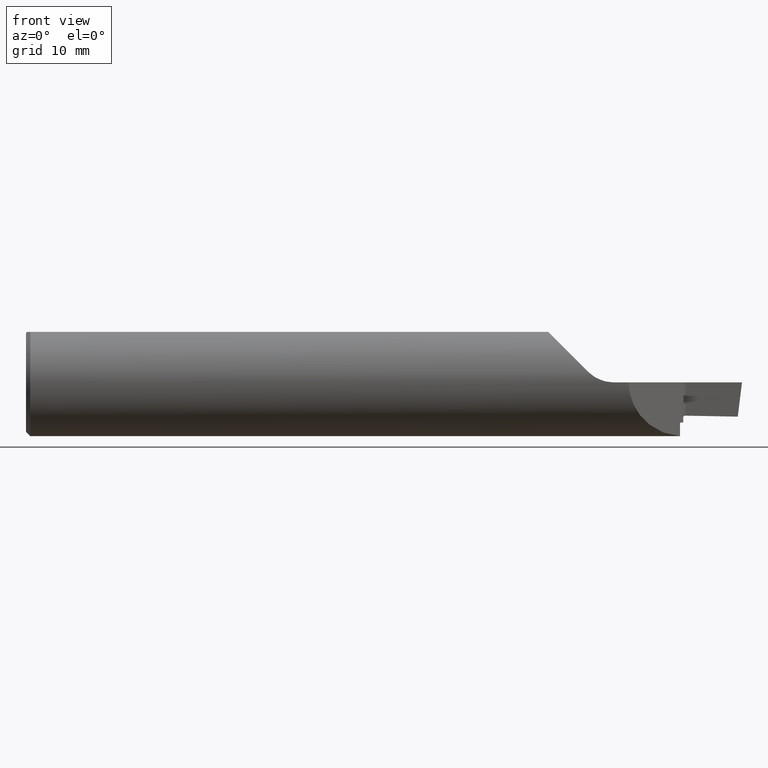
[diagram: clean part render]
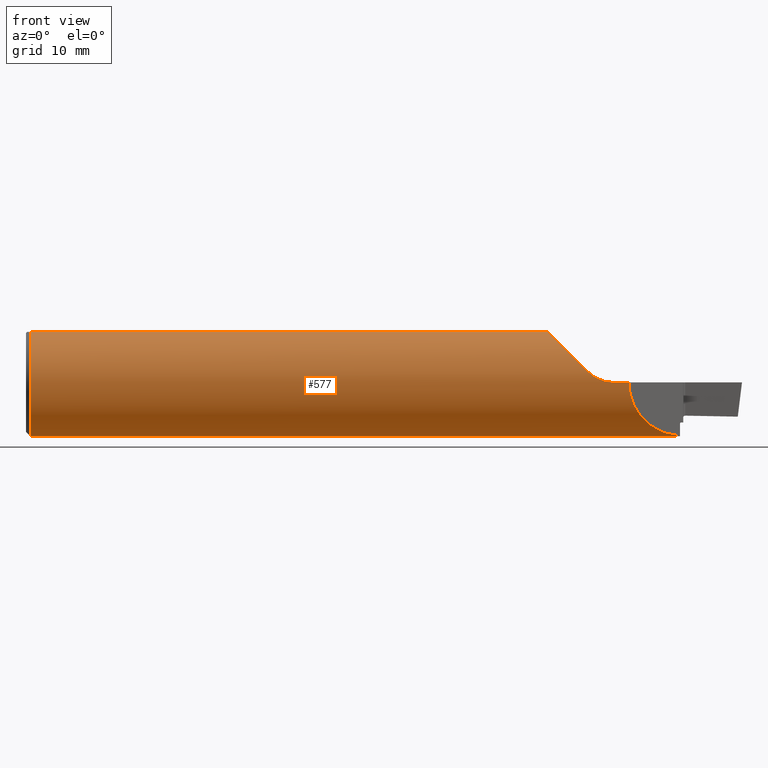
[diagram: same view with one face highlighted and labeled with its STEP entity id]
A machine part, front view. The second image highlights one B-rep face of the part: STEP entity #577.
In plain terms, the highlighted cylindrical surface (partial cylindrical patch) has radius 4.7587 mm, axis along (-1, -0, -0).
Its self-contained STEP definition (entity closure, byte-faithful):
#17 = CARTESIAN_POINT ( 'NONE',  ( 1.338951377213943861, -0.002870465228317849431, -0.1873283842962036871 ) ) ;
#28 = CARTESIAN_POINT ( 'NONE',  ( 1.337195659723047436, 0.007509920994524191089, -0.1872250261289547246 ) ) ;
#32 = ORIENTED_EDGE ( 'NONE', *, *, #613, .F. ) ;
#35 = CARTESIAN_POINT ( 'NONE',  ( 1.334999999999999742, 0.05625817887700514802, -0.1791322750681638709 ) ) ;
#37 = ORIENTED_EDGE ( 'NONE', *, *, #412, .T. ) ;
#54 = DIRECTION ( 'NONE',  ( -1.000000000000000000, -0.000000000000000000, -0.000000000000000000 ) ) ;
#56 = ORIENTED_EDGE ( 'NONE', *, *, #761, .T. ) ;
#67 = FACE_OUTER_BOUND ( 'NONE', #101, .T. ) ;
#70 = DIRECTION ( 'NONE',  ( 0.000000000000000000, 0.000000000000000000, -1.000000000000000000 ) ) ;
#77 = CARTESIAN_POINT ( 'NONE',  ( 1.846378452100291501, -0.1266201564974553662, 0.1536215478997087214 ) ) ;
#81 = CARTESIAN_POINT ( 'NONE',  ( 2.283393038587651080, -0.008956961412348769108, -0.1871357671378127974 ) ) ;
#83 = CARTESIAN_POINT ( 'NONE',  ( 1.339074979391454923, -0.003245713992497605265, -0.1873222229057585064 ) ) ;
#84 = EDGE_CURVE ( 'NONE', #249, #505, #118, .T. ) ;
#88 = VERTEX_POINT ( 'NONE', #536 ) ;
#91 = CARTESIAN_POINT ( 'NONE',  ( 0.000000000000000000, -0.1873499999999999888, 0.000000000000000000 ) ) ;
#99 = CARTESIAN_POINT ( 'NONE',  ( 2.035390929681094807, -0.1873549854116181856, 0.0008110107679984991354 ) ) ;
#101 = EDGE_LOOP ( 'NONE', ( #171, #636, #56, #219, #612, #464, #37, #392, #279, #110, #146, #32, #518 ) ) ;
#103 = CARTESIAN_POINT ( 'NONE',  ( 0.000000000000000000, -0.06325108694718213631, 0.1763499999999999790 ) ) ;
#110 = ORIENTED_EDGE ( 'NONE', *, *, #401, .T. ) ;
#111 = EDGE_CURVE ( 'NONE', #325, #461, #605, .T. ) ;
#118 = B_SPLINE_CURVE_WITH_KNOTS ( 'NONE', 3,
 ( #532, #140, #686, #208 ),
 .UNSPECIFIED., .F., .F.,
 ( 4, 4 ),
 ( 0.002381199190277828726, 0.002506274907967739364 ),
 .UNSPECIFIED. ) ;
#119 = CARTESIAN_POINT ( 'NONE',  ( 2.104999999999999538, -0.1873499999999999888, -6.829619984160658046E-17 ) ) ;
#121 = VERTEX_POINT ( 'NONE', #433 ) ;
#123 = DIRECTION ( 'NONE',  ( 0.000000000000000000, 0.000000000000000000, 1.000000000000000000 ) ) ;
#140 = CARTESIAN_POINT ( 'NONE',  ( 1.335000000000000187, 0.06629317938995302195, 0.1752365688409875943 ) ) ;
#146 = ORIENTED_EDGE ( 'NONE', *, *, #84, .F. ) ;
#155 = EDGE_CURVE ( 'NONE', #664, #325, #504, .T. ) ;
#158 = CARTESIAN_POINT ( 'NONE',  ( 1.339399018889529280, -0.003959314961772966192, -0.1873084986825458431 ) ) ;
#161 = CARTESIAN_POINT ( 'NONE',  ( 1.812499999999999778, -0.004437576883792758962, -0.1872974383471392446 ) ) ;
#167 = CARTESIAN_POINT ( 'NONE',  ( 1.336913895729895607, 0.01061167438636866772, -0.1870750754728970622 ) ) ;
#169 = DIRECTION ( 'NONE',  ( 1.000000000000000000, 0.000000000000000000, 0.000000000000000000 ) ) ;
#171 = ORIENTED_EDGE ( 'NONE', *, *, #155, .F. ) ;
#173 = LINE ( 'NONE', #103, #483 ) ;
#175 = EDGE_CURVE ( 'NONE', #732, #594, #540, .T. ) ;
#179 = CARTESIAN_POINT ( 'NONE',  ( 1.335009689054889037, 0.06325108694718309388, 0.1763499999999996737 ) ) ;
#191 = EDGE_CURVE ( 'NONE', #510, #732, #448, .T. ) ;
#202 = CARTESIAN_POINT ( 'NONE',  ( 1.963388347648318932, -0.1837378823544007778, 0.03661165235168151871 ) ) ;
#208 = CARTESIAN_POINT ( 'NONE',  ( 1.335009689054889037, 0.06325108694718309388, 0.1763499999999996737 ) ) ;
#219 = ORIENTED_EDGE ( 'NONE', *, *, #191, .T. ) ;
#228 = CARTESIAN_POINT ( 'NONE',  ( 1.339598998625805004, -0.004437576883793187439, -0.1872974383471391890 ) ) ;
#230 = CARTESIAN_POINT ( 'NONE',  ( 2.104999999999999538, -0.1873499999999999888, -6.829619984160658046E-17 ) ) ;
#231 = CARTESIAN_POINT ( 'NONE',  ( 1.335166595942603118, 0.04439214968827082108, -0.1824345190479061685 ) ) ;
#245 = CARTESIAN_POINT ( 'NONE',  ( 1.336187288558007502, 0.01991515597133086679, -0.1863922880607652710 ) ) ;
#249 = VERTEX_POINT ( 'NONE', #324 ) ;
#253 =( BOUNDED_CURVE ( )  B_SPLINE_CURVE ( 3, ( #474, #267, #798, #668 ),
 .UNSPECIFIED., .F., .T. ) 
 B_SPLINE_CURVE_WITH_KNOTS ( ( 4, 4 ),
 ( 1.594484567641964334, 1.618623265893552432 ),
 .UNSPECIFIED. ) 
 CURVE ( )  GEOMETRIC_REPRESENTATION_ITEM ( )  RATIONAL_B_SPLINE_CURVE ( ( 1.000000000000000000, 0.9999514441933211595, 0.9999514441933211595, 1.000000000000000000 ) ) 
 REPRESENTATION_ITEM ( '' )  );
#259 = CARTESIAN_POINT ( 'NONE',  ( 1.823649999999999771, -0.06325108694718213631, 0.1763499999999999790 ) ) ;
#261 = CARTESIAN_POINT ( 'NONE',  ( 1.335000000000000187, 0.000000000000000000, 0.000000000000000000 ) ) ;
#262 = VECTOR ( 'NONE', #442, 39.37007874015748143 ) ;
#264 = CIRCLE ( 'NONE', #635, 0.1873499999999999888 ) ;
#267 = CARTESIAN_POINT ( 'NONE',  ( 2.283340458535739081, -0.005944652255764125079, -0.1872617317037810758 ) ) ;
#269 = CARTESIAN_POINT ( 'NONE',  ( 1.340000000000000080, -0.004437576883793904747, -0.1872974383471392446 ) ) ;
#279 = ORIENTED_EDGE ( 'NONE', *, *, #561, .T. ) ;
#282 = CARTESIAN_POINT ( 'NONE',  ( 1.340000000000000080, -0.004437576883793904747, -0.1872974383471392446 ) ) ;
#285 = CARTESIAN_POINT ( 'NONE',  ( 1.338620484590426152, -0.001745530422709880031, -0.1873433696669191129 ) ) ;
#290 = CIRCLE ( 'NONE', #403, 0.1873499999999999888 ) ;
#295 = DIRECTION ( 'NONE',  ( -1.000000000000000000, -0.000000000000000000, -0.000000000000000000 ) ) ;
#302 = CARTESIAN_POINT ( 'NONE',  ( 1.338007575457989207, 0.001316809534356252120, -0.1873516452513924180 ) ) ;
#324 = CARTESIAN_POINT ( 'NONE',  ( 1.335000000000000187, 0.06780158507429057124, 0.1746509878626906764 ) ) ;
#325 = VERTEX_POINT ( 'NONE', #269 ) ;
#327 = EDGE_CURVE ( 'NONE', #594, #88, #757, .T. ) ;
#341 = CARTESIAN_POINT ( 'NONE',  ( 2.104999999999999538, -0.1873500000000000165, -0.1056296794908331560 ) ) ;
#347 = AXIS2_PLACEMENT_3D ( 'NONE', #459, #54, #123 ) ;
#353 = CARTESIAN_POINT ( 'NONE',  ( 0.01499999999999943046, -0.06325108694718213631, 0.1763499999999999790 ) ) ;
#364 = CARTESIAN_POINT ( 'NONE',  ( 2.051776695296636976, -0.1873499999999999888, 0.000000000000000000 ) ) ;
#368 = CARTESIAN_POINT ( 'NONE',  ( 1.996326790910569082, -0.1869473204897925123, 0.01267266404239195815 ) ) ;
#372 = CARTESIAN_POINT ( 'NONE',  ( 2.011462618758882659, -0.1872671557635287864, 0.006396047567269131165 ) ) ;
#377 = CARTESIAN_POINT ( 'NONE',  ( 2.019406815221594709, -0.1873142647345006628, 0.003989301195303232572 ) ) ;
#390 = CARTESIAN_POINT ( 'NONE',  ( 2.283314152437271982, -0.004437576883904383214, -0.1872974383471404936 ) ) ;
#392 = ORIENTED_EDGE ( 'NONE', *, *, #475, .T. ) ;
#401 = EDGE_CURVE ( 'NONE', #791, #505, #787, .T. ) ;
#403 = AXIS2_PLACEMENT_3D ( 'NONE', #435, #710, #772 ) ;
#412 = EDGE_CURVE ( 'NONE', #88, #845, #173, .T. ) ;
#433 = CARTESIAN_POINT ( 'NONE',  ( 0.01499999999999943046, 0.000000000000000000, -0.1873499999999998777 ) ) ;
#435 = CARTESIAN_POINT ( 'NONE',  ( 0.01499999999999943046, 0.000000000000000000, 0.000000000000000000 ) ) ;
#437 = CARTESIAN_POINT ( 'NONE',  ( 1.335000000000000187, 0.06780158507429057124, -0.1746509878626906764 ) ) ;
#442 = DIRECTION ( 'NONE',  ( -1.000000000000000000, -0.000000000000000000, -0.000000000000000000 ) ) ;
#444 = VECTOR ( 'NONE', #169, 39.37007874015748143 ) ;
#448 = LINE ( 'NONE', #91, #724 ) ;
#459 = CARTESIAN_POINT ( 'NONE',  ( 0.000000000000000000, 0.000000000000000000, 0.000000000000000000 ) ) ;
#461 = VERTEX_POINT ( 'NONE', #648 ) ;
#464 = ORIENTED_EDGE ( 'NONE', *, *, #327, .T. ) ;
#474 = CARTESIAN_POINT ( 'NONE',  ( 2.283314152437271982, -0.004437576883904383214, -0.1872974383471404936 ) ) ;
#475 = EDGE_CURVE ( 'NONE', #845, #121, #290, .T. ) ;
#478 = CARTESIAN_POINT ( 'NONE',  ( 0.01499999999999943046, 0.06325108694718213631, 0.1763499999999999790 ) ) ;
#483 = VECTOR ( 'NONE', #783, 39.37007874015748143 ) ;
#504 = LINE ( 'NONE', #161, #262 ) ;
#505 = VERTEX_POINT ( 'NONE', #179 ) ;
#510 = VERTEX_POINT ( 'NONE', #119 ) ;
#518 = ORIENTED_EDGE ( 'NONE', *, *, #111, .F. ) ;
#523 = CARTESIAN_POINT ( 'NONE',  ( 2.283393038587651080, -0.008956961412348769108, -0.1871357671378127974 ) ) ;
#532 = CARTESIAN_POINT ( 'NONE',  ( 1.335000000000000187, 0.06780158507429057124, 0.1746509878626906764 ) ) ;
#536 = CARTESIAN_POINT ( 'NONE',  ( 1.823649999999999771, -0.06325108694718213631, 0.1763499999999999790 ) ) ;
#540 = B_SPLINE_CURVE_WITH_KNOTS ( 'NONE', 3,
 ( #706, #844, #99, #377, #372, #368, #569, #776, #711, #640 ),
 .UNSPECIFIED., .F., .F.,
 ( 4, 2, 2, 2, 4 ),
 ( 0.000000000000000000, 0.0006206708188418187102, 0.001241341637683637420, 0.001862012456525456022, 0.002482683275367274841 ),
 .UNSPECIFIED. ) ;
#553 = CARTESIAN_POINT ( 'NONE',  ( 1.337785276688023162, 0.002866821372282767413, -0.1873344617009971291 ) ) ;
#561 = EDGE_CURVE ( 'NONE', #121, #791, #264, .T. ) ;
#563 = CARTESIAN_POINT ( 'NONE',  ( 1.335876431591974001, 0.02611473827042134349, -0.1856240595763762047 ) ) ;
#569 = CARTESIAN_POINT ( 'NONE',  ( 1.989151228518893477, -0.1866765615736736272, 0.01651232730745808355 ) ) ;
#577 = ADVANCED_FACE ( 'NONE', ( #67 ), #726, .T. ) ;
#592 = DIRECTION ( 'NONE',  ( 0.000000000000000000, 0.000000000000000000, -1.000000000000000000 ) ) ;
#594 = VERTEX_POINT ( 'NONE', #861 ) ;
#596 = DIRECTION ( 'NONE',  ( 1.000000000000000000, 0.000000000000000000, 0.000000000000000000 ) ) ;
#605 = B_SPLINE_CURVE_WITH_KNOTS ( 'NONE', 3,
 ( #282, #228, #158, #83, #17, #285, #817, #302, #553, #28, #167, #245, #563, #231, #35, #437 ),
 .UNSPECIFIED., .F., .F.,
 ( 4, 2, 2, 2, 2, 2, 2, 4 ),
 ( 1.972663511944079485E-07, 3.038878334213652248E-05, 6.058030033307863711E-05, 0.0001209633343149629206, 0.0002417294022787314469, 0.0004832615382062712371, 0.0009663258100613504381, 0.001932454353771507647 ),
 .UNSPECIFIED. ) ;
#612 = ORIENTED_EDGE ( 'NONE', *, *, #175, .T. ) ;
#613 = EDGE_CURVE ( 'NONE', #461, #249, #725, .T. ) ;
#627 = EDGE_CURVE ( 'NONE', #664, #641, #253, .T. ) ;
#635 = AXIS2_PLACEMENT_3D ( 'NONE', #654, #856, #592 ) ;
#636 = ORIENTED_EDGE ( 'NONE', *, *, #627, .T. ) ;
#640 = CARTESIAN_POINT ( 'NONE',  ( 1.963388347648318932, -0.1837378823544007778, 0.03661165235168151871 ) ) ;
#641 = VERTEX_POINT ( 'NONE', #523 ) ;
#648 = CARTESIAN_POINT ( 'NONE',  ( 1.335000000000000187, 0.06780158507429057124, -0.1746509878626906764 ) ) ;
#654 = CARTESIAN_POINT ( 'NONE',  ( 0.01499999999999943046, 0.000000000000000000, 0.000000000000000000 ) ) ;
#664 = VERTEX_POINT ( 'NONE', #390 ) ;
#668 = CARTESIAN_POINT ( 'NONE',  ( 2.283393038587651080, -0.008956961412348769108, -0.1871357671378127974 ) ) ;
#686 = CARTESIAN_POINT ( 'NONE',  ( 1.335003182178051029, 0.06477635905624776202, 0.1758029338316828838 ) ) ;
#705 = CARTESIAN_POINT ( 'NONE',  ( 0.000000000000000000, 0.06325108694718213631, 0.1763499999999999790 ) ) ;
#706 = CARTESIAN_POINT ( 'NONE',  ( 2.051776695296636976, -0.1873499999999999888, 0.000000000000000000 ) ) ;
#710 = DIRECTION ( 'NONE',  ( 1.000000000000000000, 0.000000000000000000, 0.000000000000000000 ) ) ;
#711 = CARTESIAN_POINT ( 'NONE',  ( 1.969176586392017869, -0.1848912481268661367, 0.03082341360798270674 ) ) ;
#724 = VECTOR ( 'NONE', #295, 39.37007874015748143 ) ;
#725 = CIRCLE ( 'NONE', #850, 0.1873499999999999888 ) ;
#726 = CYLINDRICAL_SURFACE ( 'NONE', #347, 0.1873499999999999888 ) ;
#728 =( BOUNDED_CURVE ( )  B_SPLINE_CURVE ( 3, ( #81, #826, #341, #230 ),
 .UNSPECIFIED., .F., .T. ) 
 B_SPLINE_CURVE_WITH_KNOTS ( ( 4, 4 ),
 ( 4.760215919483345104, 6.283185307179586232 ),
 .UNSPECIFIED. ) 
 CURVE ( )  GEOMETRIC_REPRESENTATION_ITEM ( )  RATIONAL_B_SPLINE_CURVE ( ( 1.000000000000000000, 0.8158749165344600929, 0.8158749165344600929, 1.000000000000000000 ) ) 
 REPRESENTATION_ITEM ( '' )  );
#732 = VERTEX_POINT ( 'NONE', #364 ) ;
#734 = CARTESIAN_POINT ( 'NONE',  ( 1.897364539052141197, -0.1705819631923700119, 0.1026354609478592056 ) ) ;
#757 =( BOUNDED_CURVE ( )  B_SPLINE_CURVE ( 3, ( #202, #734, #77, #259 ),
 .UNSPECIFIED., .F., .T. ) 
 B_SPLINE_CURVE_WITH_KNOTS ( ( 4, 4 ),
 ( 4.909073120026993919, 5.938809479923476076 ),
 .UNSPECIFIED. ) 
 CURVE ( )  GEOMETRIC_REPRESENTATION_ITEM ( )  RATIONAL_B_SPLINE_CURVE ( ( 1.000000000000000000, 0.9135717604705588801, 0.9135717604705588801, 1.000000000000000000 ) ) 
 REPRESENTATION_ITEM ( '' )  );
#761 = EDGE_CURVE ( 'NONE', #641, #510, #728, .T. ) ;
#772 = DIRECTION ( 'NONE',  ( 0.000000000000000000, 0.000000000000000000, -1.000000000000000000 ) ) ;
#776 = CARTESIAN_POINT ( 'NONE',  ( 1.975584630924563934, -0.1856528012981897013, 0.02557015768846747708 ) ) ;
#783 = DIRECTION ( 'NONE',  ( -1.000000000000000000, -0.000000000000000000, -0.000000000000000000 ) ) ;
#787 = LINE ( 'NONE', #705, #444 ) ;
#791 = VERTEX_POINT ( 'NONE', #478 ) ;
#798 = CARTESIAN_POINT ( 'NONE',  ( 2.283366755196054143, -0.007451186916251344161, -0.1872078386838540442 ) ) ;
#817 = CARTESIAN_POINT ( 'NONE',  ( 1.338454682457659528, -0.0009828732464432995714, -0.1873489900603167724 ) ) ;
#826 = CARTESIAN_POINT ( 'NONE',  ( 2.177884145585044173, -0.1144658544149553397, -0.1820857486526344937 ) ) ;
#844 = CARTESIAN_POINT ( 'NONE',  ( 2.043515043950825838, -0.1873499999999999888, 3.001297844601850477E-19 ) ) ;
#845 = VERTEX_POINT ( 'NONE', #353 ) ;
#850 = AXIS2_PLACEMENT_3D ( 'NONE', #261, #596, #70 ) ;
#856 = DIRECTION ( 'NONE',  ( 1.000000000000000000, 0.000000000000000000, 0.000000000000000000 ) ) ;
#861 = CARTESIAN_POINT ( 'NONE',  ( 1.963388347648318932, -0.1837378823544007778, 0.03661165235168151871 ) ) ;